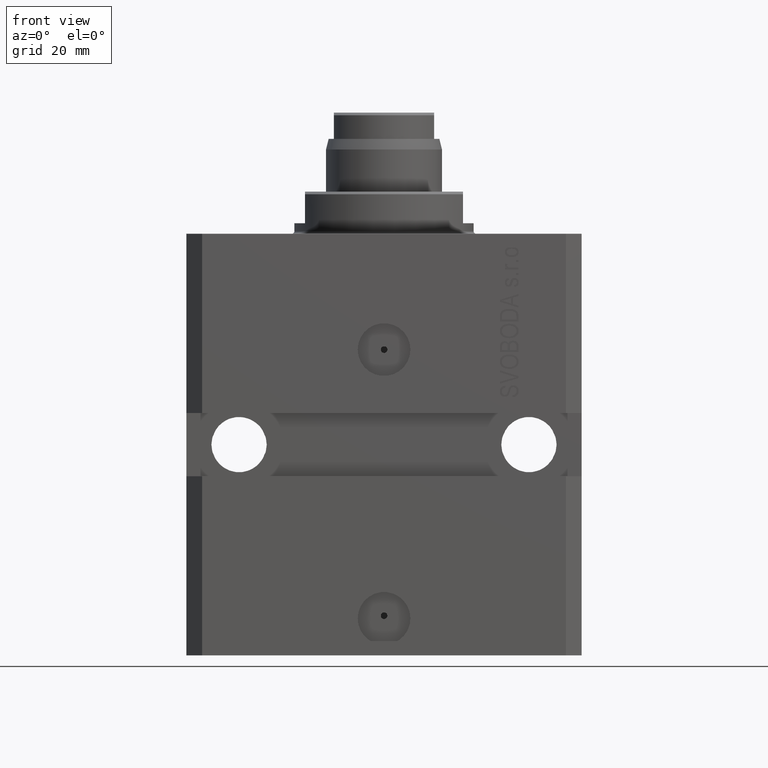
[diagram: clean part render]
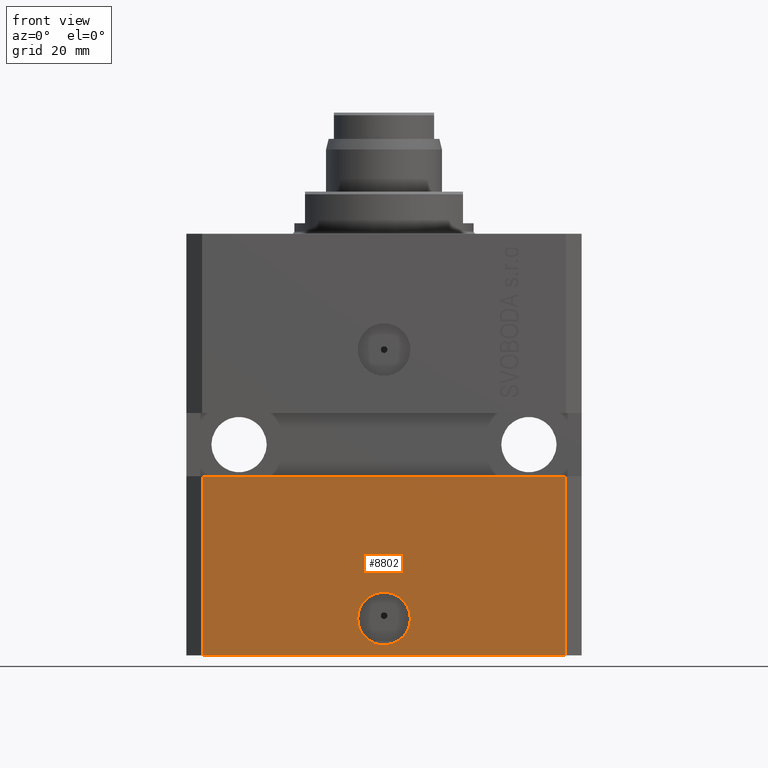
[diagram: same view with one face highlighted and labeled with its STEP entity id]
A machine part, front view. The second image highlights one B-rep face of the part: STEP entity #8802.
In plain terms, the highlighted planar face has unit normal (0, -1, 0).
Its self-contained STEP definition (entity closure, byte-faithful):
#794 = CARTESIAN_POINT ( 'NONE',  ( 34.49999999999999289, -27.49999999999999645, -80.00000000000000000 ) ) ;
#1345 = ORIENTED_EDGE ( 'NONE', *, *, #32328, .F. ) ;
#2192 = CARTESIAN_POINT ( 'NONE',  ( 0.000000000000000000, -27.49999999999999645, -73.00000000000000000 ) ) ;
#2233 = AXIS2_PLACEMENT_3D ( 'NONE', #16153, #23662, #13077 ) ;
#2234 = VECTOR ( 'NONE', #39062, 1000.000000000000000 ) ;
#2945 = CARTESIAN_POINT ( 'NONE',  ( 34.49999999999999289, -27.49999999999999289, -46.00000000000000000 ) ) ;
#3334 = CARTESIAN_POINT ( 'NONE',  ( -34.49999999999998579, -27.49999999999999645, -80.00000000000000000 ) ) ;
#3355 = EDGE_CURVE ( 'NONE', #43731, #28894, #8834, .T. ) ;
#4105 = LINE ( 'NONE', #794, #41421 ) ;
#8236 = LINE ( 'NONE', #34793, #26952 ) ;
#8802 = ADVANCED_FACE ( 'NONE', ( #11257, #11474 ), #15005, .T. ) ;
#8834 = LINE ( 'NONE', #21665, #19497 ) ;
#9768 = EDGE_CURVE ( 'NONE', #24005, #28894, #4105, .T. ) ;
#11257 = FACE_BOUND ( 'NONE', #32257, .T. ) ;
#11474 = FACE_OUTER_BOUND ( 'NONE', #21782, .T. ) ;
#11965 = DIRECTION ( 'NONE',  ( 1.176083712526788232E-16, -1.000000000000000000, 0.000000000000000000 ) ) ;
#12089 = CIRCLE ( 'NONE', #22647, 5.000000000000006217 ) ;
#12439 = VERTEX_POINT ( 'NONE', #3334 ) ;
#13077 = DIRECTION ( 'NONE',  ( 1.000000000000000000, 0.000000000000000000, 0.000000000000000000 ) ) ;
#14321 = DIRECTION ( 'NONE',  ( 0.000000000000000000, 0.000000000000000000, 1.000000000000000000 ) ) ;
#15005 = PLANE ( 'NONE',  #22398 ) ;
#15586 = VERTEX_POINT ( 'NONE', #28099 ) ;
#16131 = ORIENTED_EDGE ( 'NONE', *, *, #30929, .F. ) ;
#16153 = CARTESIAN_POINT ( 'NONE',  ( 0.000000000000000000, -27.49999999999999645, -73.00000000000000000 ) ) ;
#17337 = DIRECTION ( 'NONE',  ( 0.000000000000000000, 0.000000000000000000, 1.000000000000000000 ) ) ;
#19497 = VECTOR ( 'NONE', #38923, 1000.000000000000000 ) ;
#21665 = CARTESIAN_POINT ( 'NONE',  ( -37.50000000000000000, -27.50000000000000000, -46.00000000000000000 ) ) ;
#21782 = EDGE_LOOP ( 'NONE', ( #29119, #16131, #26707, #31568 ) ) ;
#21843 = CARTESIAN_POINT ( 'NONE',  ( -34.49999999999998579, -27.49999999999999645, -80.00000000000000000 ) ) ;
#22398 = AXIS2_PLACEMENT_3D ( 'NONE', #21843, #24737, #38235 ) ;
#22647 = AXIS2_PLACEMENT_3D ( 'NONE', #2192, #11965, #42725 ) ;
#23662 = DIRECTION ( 'NONE',  ( 1.176083712526788232E-16, -1.000000000000000000, 0.000000000000000000 ) ) ;
#24005 = VERTEX_POINT ( 'NONE', #28928 ) ;
#24737 = DIRECTION ( 'NONE',  ( 0.000000000000000000, -1.000000000000000000, 0.000000000000000000 ) ) ;
#26707 = ORIENTED_EDGE ( 'NONE', *, *, #38480, .T. ) ;
#26952 = VECTOR ( 'NONE', #17337, 1000.000000000000000 ) ;
#26979 = CIRCLE ( 'NONE', #2233, 5.000000000000006217 ) ;
#28099 = CARTESIAN_POINT ( 'NONE',  ( 5.000000000000006217, -27.49999999999999645, -73.00000000000000000 ) ) ;
#28862 = CARTESIAN_POINT ( 'NONE',  ( -5.000000000000006217, -27.49999999999999645, -73.00000000000000000 ) ) ;
#28894 = VERTEX_POINT ( 'NONE', #2945 ) ;
#28928 = CARTESIAN_POINT ( 'NONE',  ( 34.49999999999999289, -27.49999999999999645, -80.00000000000000000 ) ) ;
#29119 = ORIENTED_EDGE ( 'NONE', *, *, #3355, .F. ) ;
#29314 = EDGE_CURVE ( 'NONE', #36585, #15586, #12089, .T. ) ;
#30929 = EDGE_CURVE ( 'NONE', #12439, #43731, #8236, .T. ) ;
#31568 = ORIENTED_EDGE ( 'NONE', *, *, #9768, .T. ) ;
#32257 = EDGE_LOOP ( 'NONE', ( #1345, #32727 ) ) ;
#32328 = EDGE_CURVE ( 'NONE', #15586, #36585, #26979, .T. ) ;
#32727 = ORIENTED_EDGE ( 'NONE', *, *, #29314, .F. ) ;
#34612 = CARTESIAN_POINT ( 'NONE',  ( -34.49999999999998579, -27.50000000000000000, -46.00000000000000000 ) ) ;
#34793 = CARTESIAN_POINT ( 'NONE',  ( -34.49999999999998579, -27.49999999999999645, -80.00000000000000000 ) ) ;
#36585 = VERTEX_POINT ( 'NONE', #28862 ) ;
#38235 = DIRECTION ( 'NONE',  ( 0.000000000000000000, -0.000000000000000000, -1.000000000000000000 ) ) ;
#38480 = EDGE_CURVE ( 'NONE', #12439, #24005, #41518, .T. ) ;
#38923 = DIRECTION ( 'NONE',  ( 1.000000000000000000, 9.251858538542972814E-17, 0.000000000000000000 ) ) ;
#39062 = DIRECTION ( 'NONE',  ( 1.000000000000000000, 0.000000000000000000, 0.000000000000000000 ) ) ;
#41421 = VECTOR ( 'NONE', #14321, 1000.000000000000000 ) ;
#41518 = LINE ( 'NONE', #42175, #2234 ) ;
#42175 = CARTESIAN_POINT ( 'NONE',  ( -34.49999999999998579, -27.49999999999999645, -80.00000000000000000 ) ) ;
#42725 = DIRECTION ( 'NONE',  ( 1.000000000000000000, 0.000000000000000000, 0.000000000000000000 ) ) ;
#43731 = VERTEX_POINT ( 'NONE', #34612 ) ;